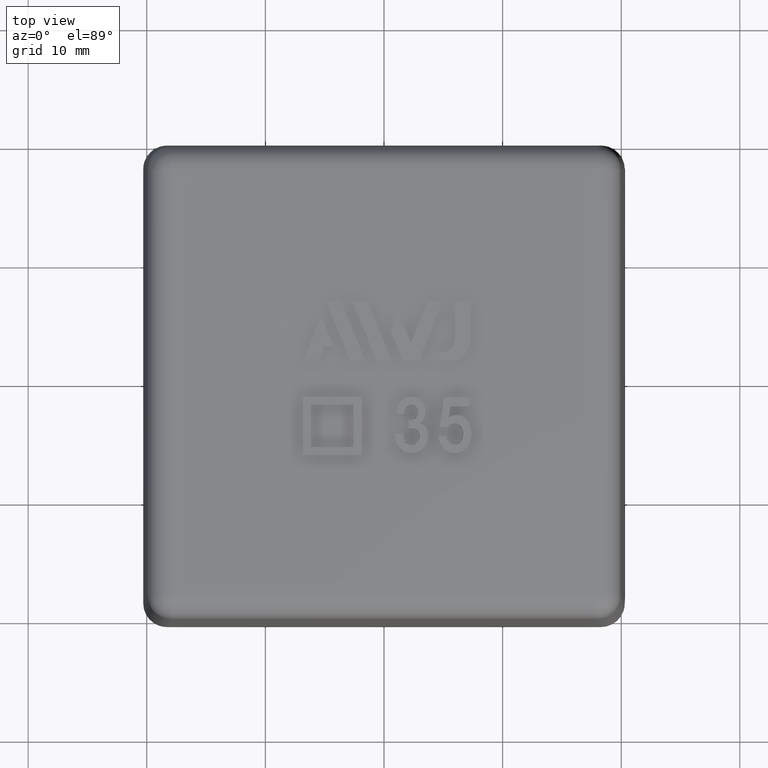
[diagram: clean part render]
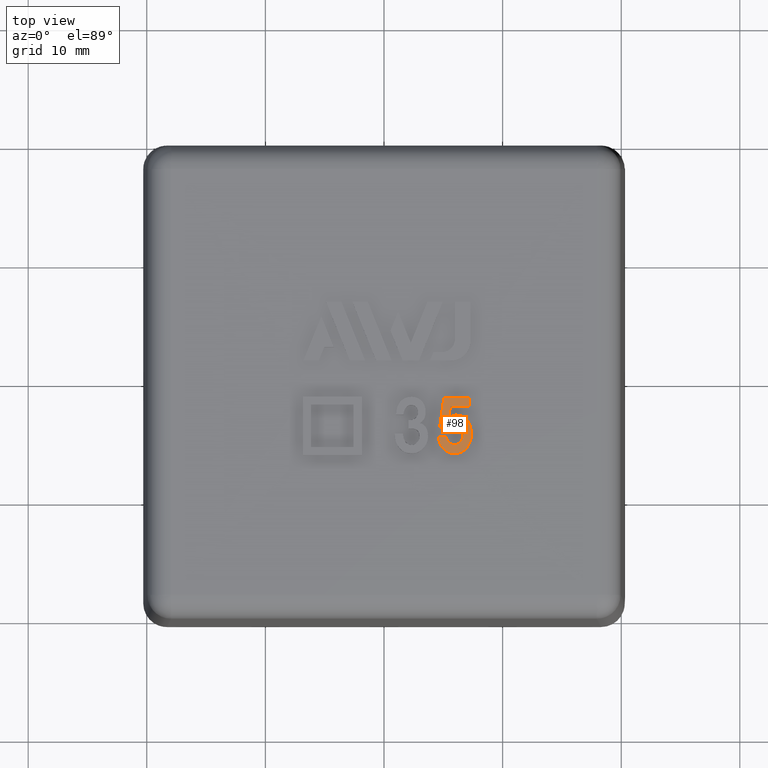
[diagram: same view with one face highlighted and labeled with its STEP entity id]
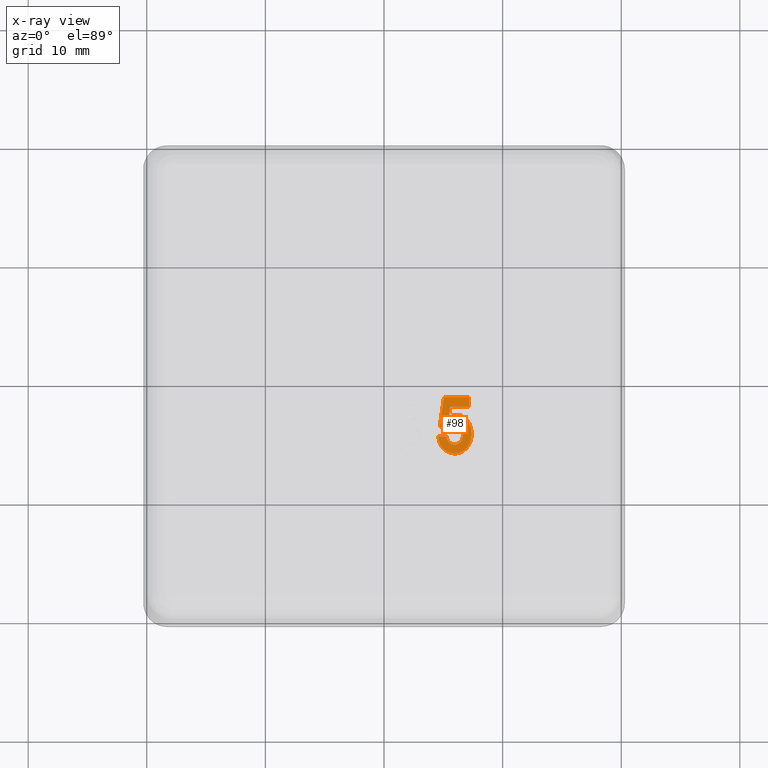
[diagram: x-ray of the same camera — body ghosted, the highlighted face saturated]
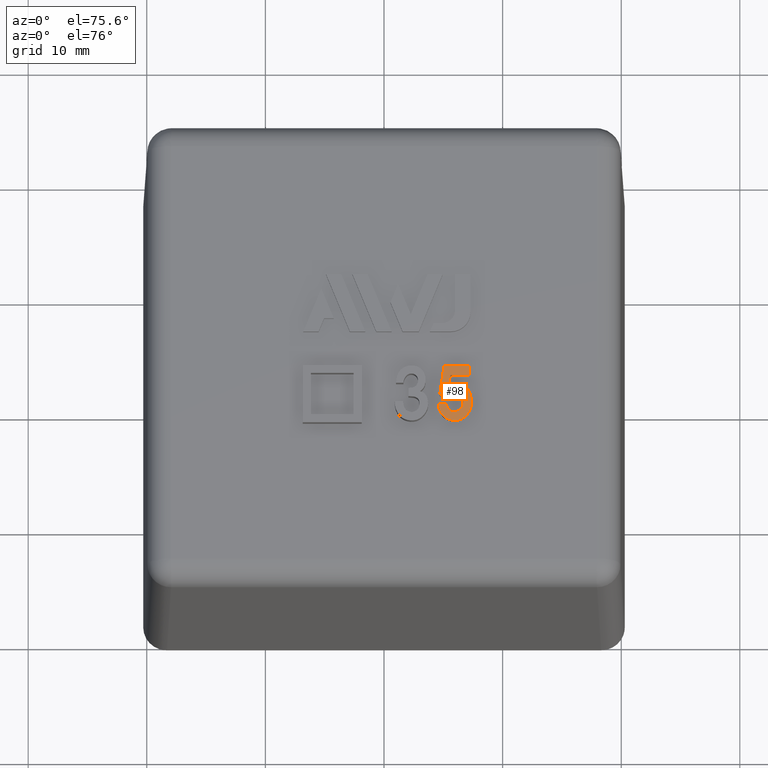
[diagram: same view with one face highlighted and labeled with its STEP entity id]
A machine part, top view. The second image highlights one B-rep face of the part: STEP entity #98.
The next image is the same camera in x-ray: the body ghosted, the highlighted face saturated — about 0% of this face is hidden behind the body in this view.
A second angle (auxiliary view) of the same face is appended — the face is thin or edge-on in the first view.
In plain terms, the highlighted planar face has unit normal (0, 0, 1).
Its self-contained STEP definition (entity closure, byte-faithful):
#98 = ADVANCED_FACE( '', ( #217 ), #218, .T. );
#217 = FACE_OUTER_BOUND( '', #402, .T. );
#218 = PLANE( '', #403 );
#402 = EDGE_LOOP( '', ( #776, #777, #778, #779, #780, #781, #782, #783, #784, #785 ) );
#403 = AXIS2_PLACEMENT_3D( '', #786, #787, #788 );
#776 = ORIENTED_EDGE( '', *, *, #1333, .F. );
#777 = ORIENTED_EDGE( '', *, *, #1331, .F. );
#778 = ORIENTED_EDGE( '', *, *, #1329, .F. );
#779 = ORIENTED_EDGE( '', *, *, #1379, .F. );
#780 = ORIENTED_EDGE( '', *, *, #1380, .F. );
#781 = ORIENTED_EDGE( '', *, *, #1381, .F. );
#782 = ORIENTED_EDGE( '', *, *, #1382, .F. );
#783 = ORIENTED_EDGE( '', *, *, #1383, .F. );
#784 = ORIENTED_EDGE( '', *, *, #1384, .F. );
#785 = ORIENTED_EDGE( '', *, *, #1385, .F. );
#786 = CARTESIAN_POINT( '', ( 4.68080763026012, -5.14312293355338, 22.5000000000000 ) );
#787 = DIRECTION( '', ( 0.000000000000000, 0.000000000000000, 1.00000000000000 ) );
#788 = DIRECTION( '', ( 0.000000000000000, -1.00000000000000, 0.000000000000000 ) );
#1329 = EDGE_CURVE( '', #1596, #1598, #1599, .T. );
#1331 = EDGE_CURVE( '', #1598, #1601, #1602, .T. );
#1333 = EDGE_CURVE( '', #1601, #1604, #1605, .T. );
#1379 = EDGE_CURVE( '', #1677, #1596, #1678, .T. );
#1380 = EDGE_CURVE( '', #1679, #1677, #1680, .T. );
#1381 = EDGE_CURVE( '', #1681, #1679, #1682, .T. );
#1382 = EDGE_CURVE( '', #1683, #1681, #1684, .T. );
#1383 = EDGE_CURVE( '', #1685, #1683, #1686, .T. );
#1384 = EDGE_CURVE( '', #1687, #1685, #1688, .T. );
#1385 = EDGE_CURVE( '', #1604, #1687, #1689, .T. );
#1596 = VERTEX_POINT( '', #2070 );
#1598 = VERTEX_POINT( '', #2073 );
#1599 = B_SPLINE_CURVE_WITH_KNOTS( '', 2, ( #2074, #2075, #2076 ), .UNSPECIFIED., .F., .F., ( 3, 3 ), ( 13.0000000000000, 14.0000000000000 ), .UNSPECIFIED. );
#1601 = VERTEX_POINT( '', #2079 );
#1602 = B_SPLINE_CURVE_WITH_KNOTS( '', 2, ( #2080, #2081, #2082, #2083, #2084, #2085, #2086, #2087, #2088, #2089, #2090, #2091, #2092 ), .UNSPECIFIED., .F., .F., ( 3, 2, 2, 2, 2, 2, 3 ), ( 14.0000000000000, 15.0000000000000, 16.0000000000000, 17.0000000000000, 18.0000000000000, 19.0000000000000, 20.0000000000000 ), .UNSPECIFIED. );
#1604 = VERTEX_POINT( '', #2095 );
#1605 = B_SPLINE_CURVE_WITH_KNOTS( '', 2, ( #2096, #2097, #2098 ), .UNSPECIFIED., .F., .F., ( 3, 3 ), ( 0.000000000000000, 1.00000000000000 ), .UNSPECIFIED. );
#1677 = VERTEX_POINT( '', #2242 );
#1678 = B_SPLINE_CURVE_WITH_KNOTS( '', 2, ( #2243, #2244, #2245 ), .UNSPECIFIED., .F., .F., ( 3, 3 ), ( 12.0000000000000, 13.0000000000000 ), .UNSPECIFIED. );
#1679 = VERTEX_POINT( '', #2246 );
#1680 = B_SPLINE_CURVE_WITH_KNOTS( '', 2, ( #2247, #2248, #2249 ), .UNSPECIFIED., .F., .F., ( 3, 3 ), ( 11.0000000000000, 12.0000000000000 ), .UNSPECIFIED. );
#1681 = VERTEX_POINT( '', #2250 );
#1682 = B_SPLINE_CURVE_WITH_KNOTS( '', 2, ( #2251, #2252, #2253 ), .UNSPECIFIED., .F., .F., ( 3, 3 ), ( 10.0000000000000, 11.0000000000000 ), .UNSPECIFIED. );
#1683 = VERTEX_POINT( '', #2254 );
#1684 = B_SPLINE_CURVE_WITH_KNOTS( '', 2, ( #2255, #2256, #2257 ), .UNSPECIFIED., .F., .F., ( 3, 3 ), ( 9.00000000000000, 10.0000000000000 ), .UNSPECIFIED. );
#1685 = VERTEX_POINT( '', #2258 );
#1686 = B_SPLINE_CURVE_WITH_KNOTS( '', 2, ( #2259, #2260, #2261 ), .UNSPECIFIED., .F., .F., ( 3, 3 ), ( 8.00000000000000, 9.00000000000000 ), .UNSPECIFIED. );
#1687 = VERTEX_POINT( '', #2262 );
#1688 = B_SPLINE_CURVE_WITH_KNOTS( '', 2, ( #2263, #2264, #2265, #2266, #2267, #2268, #2269, #2270, #2271, #2272, #2273, #2274, #2275 ), .UNSPECIFIED., .F., .F., ( 3, 2, 2, 2, 2, 2, 3 ), ( 2.00000000000000, 3.00000000000000, 4.00000000000000, 5.00000000000000, 6.00000000000000, 7.00000000000000, 8.00000000000000 ), .UNSPECIFIED. );
#1689 = B_SPLINE_CURVE_WITH_KNOTS( '', 2, ( #2276, #2277, #2278 ), .UNSPECIFIED., .F., .F., ( 3, 3 ), ( 1.00000000000000, 2.00000000000000 ), .UNSPECIFIED. );
#2070 = CARTESIAN_POINT( '', ( 5.60316420454541, -2.10173636363638, 22.5000000000000 ) );
#2073 = CARTESIAN_POINT( '', ( 5.44407329545451, -3.03355454545456, 22.5000000000000 ) );
#2074 = CARTESIAN_POINT( '', ( 5.60316420454541, -2.10173636363638, 22.5000000000000 ) );
#2075 = CARTESIAN_POINT( '', ( 5.52361874999996, -2.56764545454547, 22.5000000000000 ) );
#2076 = CARTESIAN_POINT( '', ( 5.44407329545451, -3.03355454545456, 22.5000000000000 ) );
#2079 = CARTESIAN_POINT( '', ( 4.93646518013149, -5.58546446148621, 22.5000000000000 ) );
#2080 = CARTESIAN_POINT( '', ( 5.44407329545451, -3.03355454545456, 22.5000000000000 ) );
#2081 = CARTESIAN_POINT( '', ( 6.14861874999996, -2.60173636363638, 22.5000000000000 ) );
#2082 = CARTESIAN_POINT( '', ( 6.73860137883609, -3.01215906195717, 22.5000000000000 ) );
#2083 = CARTESIAN_POINT( '', ( 7.19407329545451, -3.32900909090910, 22.5000000000000 ) );
#2084 = CARTESIAN_POINT( '', ( 7.33043693181814, -3.98810000000001, 22.5000000000000 ) );
#2085 = CARTESIAN_POINT( '', ( 7.46680056818178, -4.64719090909092, 22.5000000000000 ) );
#2086 = CARTESIAN_POINT( '', ( 7.20511251044366, -5.22041236889823, 22.5000000000000 ) );
#2087 = CARTESIAN_POINT( '', ( 6.98952784090905, -5.69264545454547, 22.5000000000000 ) );
#2088 = CARTESIAN_POINT( '', ( 6.55546320612187, -5.91554351024699, 22.5000000000000 ) );
#2089 = CARTESIAN_POINT( '', ( 6.14861874999996, -6.12446363636365, 22.5000000000000 ) );
#2090 = CARTESIAN_POINT( '', ( 5.71592644230765, -6.03792517482519, 22.5000000000000 ) );
#2091 = CARTESIAN_POINT( '', ( 5.23952784090905, -5.94264545454547, 22.5000000000000 ) );
#2092 = CARTESIAN_POINT( '', ( 4.93646518013149, -5.58546446148621, 22.5000000000000 ) );
#2095 = CARTESIAN_POINT( '', ( 4.58043693181814, -4.60173636363638, 22.5000000000000 ) );
#2096 = CARTESIAN_POINT( '', ( 4.93646518013149, -5.58546446148621, 22.5000000000000 ) );
#2097 = CARTESIAN_POINT( '', ( 4.60316420454541, -5.19264545454547, 22.5000000000000 ) );
#2098 = CARTESIAN_POINT( '', ( 4.58043693181814, -4.60173636363638, 22.5000000000000 ) );
#2242 = CARTESIAN_POINT( '', ( 7.17134602272723, -2.10173636363638, 22.5000000000000 ) );
#2243 = CARTESIAN_POINT( '', ( 7.17134602272723, -2.10173636363638, 22.5000000000000 ) );
#2244 = CARTESIAN_POINT( '', ( 6.38725511363632, -2.10173636363638, 22.5000000000000 ) );
#2245 = CARTESIAN_POINT( '', ( 5.60316420454541, -2.10173636363638, 22.5000000000000 ) );
#2246 = CARTESIAN_POINT( '', ( 7.17134602272723, -1.32900909090911, 22.5000000000000 ) );
#2247 = CARTESIAN_POINT( '', ( 7.17134602272723, -1.32900909090911, 22.5000000000000 ) );
#2248 = CARTESIAN_POINT( '', ( 7.17134602272723, -1.71537272727274, 22.5000000000000 ) );
#2249 = CARTESIAN_POINT( '', ( 7.17134602272723, -2.10173636363638, 22.5000000000000 ) );
#2250 = CARTESIAN_POINT( '', ( 5.05770965909087, -1.32900909090911, 22.5000000000000 ) );
#2251 = CARTESIAN_POINT( '', ( 5.05770965909087, -1.32900909090911, 22.5000000000000 ) );
#2252 = CARTESIAN_POINT( '', ( 6.11452784090905, -1.32900909090911, 22.5000000000000 ) );
#2253 = CARTESIAN_POINT( '', ( 7.17134602272723, -1.32900909090911, 22.5000000000000 ) );
#2254 = CARTESIAN_POINT( '', ( 4.69407329545451, -3.82900909090911, 22.5000000000000 ) );
#2255 = CARTESIAN_POINT( '', ( 4.69407329545451, -3.82900909090911, 22.5000000000000 ) );
#2256 = CARTESIAN_POINT( '', ( 4.87589147727269, -2.57900909090911, 22.5000000000000 ) );
#2257 = CARTESIAN_POINT( '', ( 5.05770965909087, -1.32900909090911, 22.5000000000000 ) );
#2258 = CARTESIAN_POINT( '', ( 5.39861874999996, -3.82900909090911, 22.5000000000000 ) );
#2259 = CARTESIAN_POINT( '', ( 5.39861874999996, -3.82900909090911, 22.5000000000000 ) );
#2260 = CARTESIAN_POINT( '', ( 5.04634602272723, -3.82900909090911, 22.5000000000000 ) );
#2261 = CARTESIAN_POINT( '', ( 4.69407329545451, -3.82900909090911, 22.5000000000000 ) );
#2262 = CARTESIAN_POINT( '', ( 5.23952784090905, -4.60173636363638, 22.5000000000000 ) );
#2263 = CARTESIAN_POINT( '', ( 5.23952784090905, -4.60173636363638, 22.5000000000000 ) );
#2264 = CARTESIAN_POINT( '', ( 5.30770965909087, -4.96537272727274, 22.5000000000000 ) );
#2265 = CARTESIAN_POINT( '', ( 5.56202597583391, -5.16440288820208, 22.5000000000000 ) );
#2266 = CARTESIAN_POINT( '', ( 5.83043693181814, -5.37446363636365, 22.5000000000000 ) );
#2267 = CARTESIAN_POINT( '', ( 6.10545795789047, -5.29112393149325, 22.5000000000000 ) );
#2268 = CARTESIAN_POINT( '', ( 6.58043693181815, -5.14719090909092, 22.5000000000000 ) );
#2269 = CARTESIAN_POINT( '', ( 6.65824139150940, -4.58032984562608, 22.5000000000000 ) );
#2270 = CARTESIAN_POINT( '', ( 6.73952784090905, -3.98810000000001, 22.5000000000000 ) );
#2271 = CARTESIAN_POINT( '', ( 6.33043693181814, -3.66991818181820, 22.5000000000000 ) );
#2272 = CARTESIAN_POINT( '', ( 6.12589147727269, -3.51082727272729, 22.5000000000000 ) );
#2273 = CARTESIAN_POINT( '', ( 5.85316420454542, -3.55628181818183, 22.5000000000000 ) );
#2274 = CARTESIAN_POINT( '', ( 5.58043693181814, -3.60173636363638, 22.5000000000000 ) );
#2275 = CARTESIAN_POINT( '', ( 5.39861874999996, -3.82900909090911, 22.5000000000000 ) );
#2276 = CARTESIAN_POINT( '', ( 4.58043693181814, -4.60173636363638, 22.5000000000000 ) );
#2277 = CARTESIAN_POINT( '', ( 4.90998238636360, -4.60173636363638, 22.5000000000000 ) );
#2278 = CARTESIAN_POINT( '', ( 5.23952784090905, -4.60173636363638, 22.5000000000000 ) );